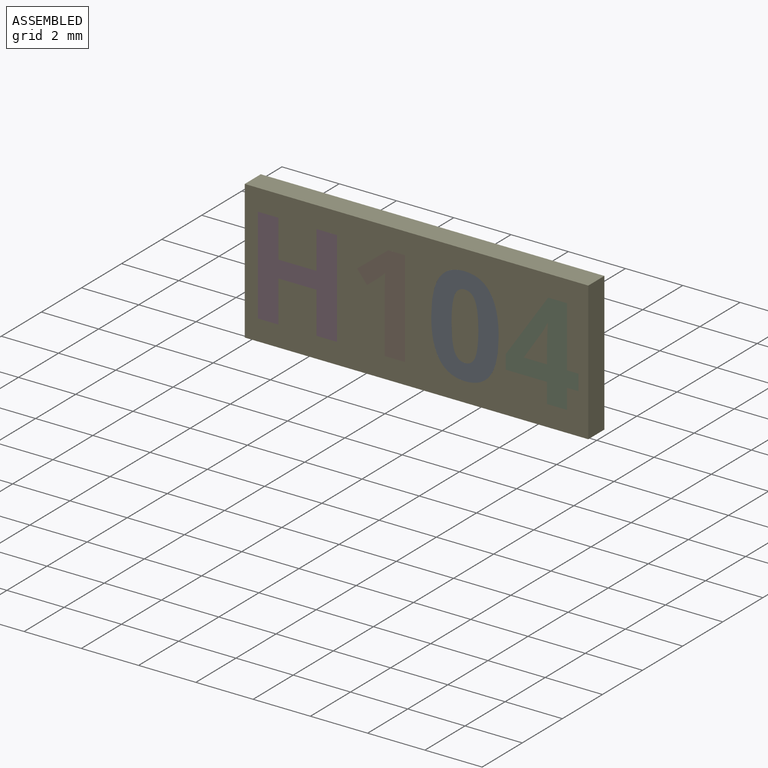
[diagram: assembled view]
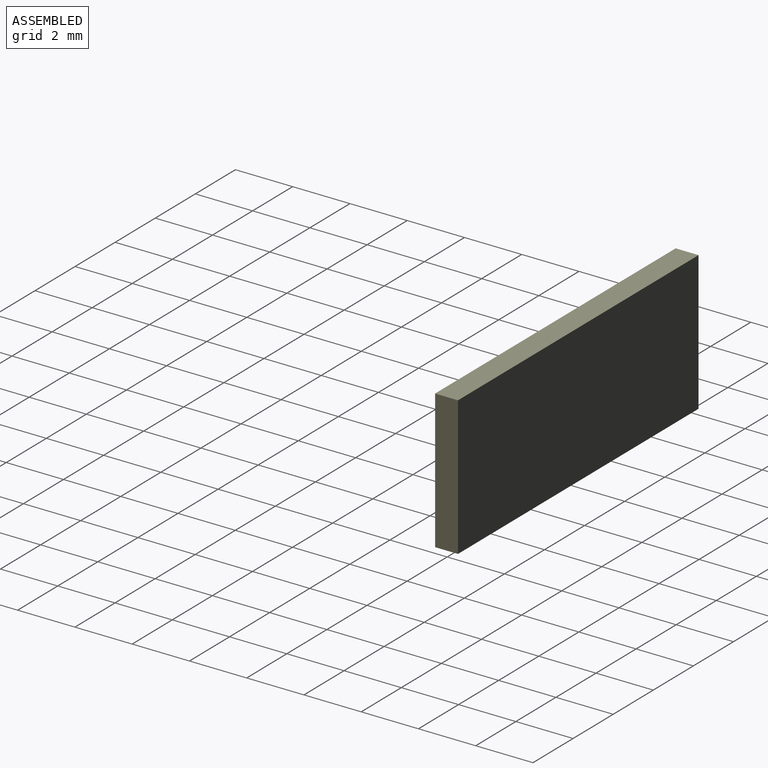
[diagram: assembled view, second angle]
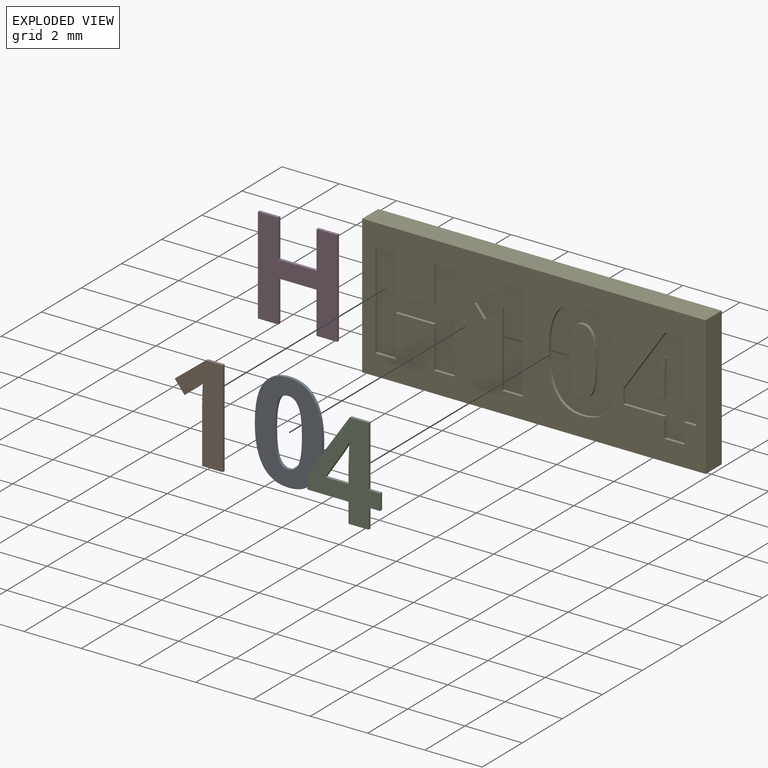
[diagram: exploded view]
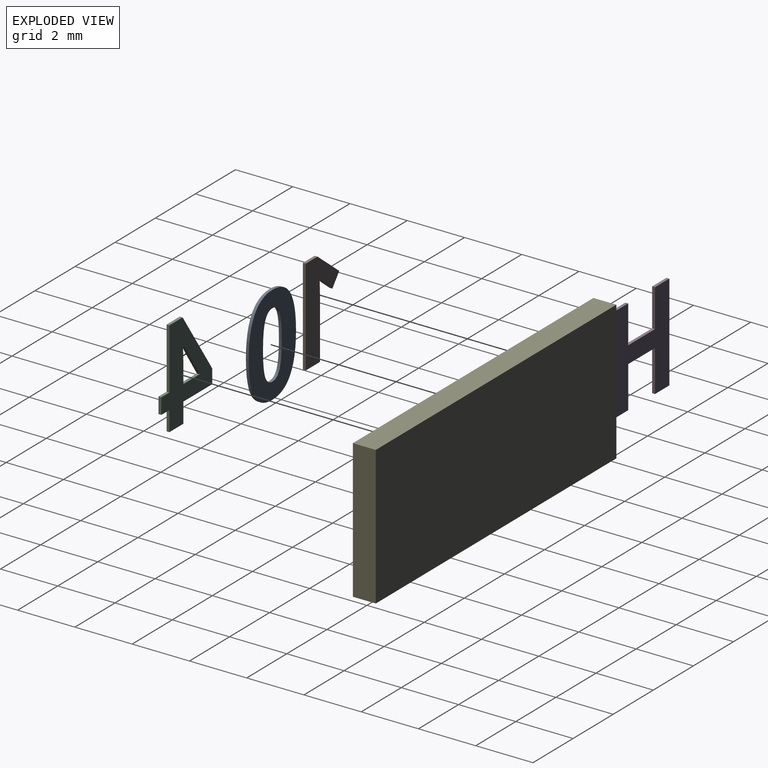
[diagram: exploded view, second angle]
ASSEMBLY  parts=5 mates=4
PART A: 18 faces, bbox 2.4x0.1x3.5 mm
  f0: plane 3.47x2.36mm, normal (0,-1,0), area 5mm2, adj f1,f2,f3,f4,f5,f6,f7,f8
  f1: extruded ~0.88x0.44mm, area 0.1mm2, adj f0,f2,f11,f13
  f2: extruded ~0.89x0.42mm, area 0.1mm2, adj f0,f1,f3,f11
  f3: extruded ~1.32x0.29mm, area 0.1mm2, adj f0,f2,f4,f11
  f4: extruded ~1.29x0.3mm, area 0.1mm2, adj f0,f3,f5,f11
  f5: extruded ~0.88x0.44mm, area 0.1mm2, adj f0,f4,f11,f12
  f6: extruded ~0.36x0.27mm, area 0mm2, adj f0,f7,f11,f16
  f7: extruded ~0.36x0.27mm, area 0mm2, adj f0,f6,f8,f11
  f8: extruded ~0.89x0.11mm, area 0.1mm2, adj f0,f7,f9,f11
  f9: extruded ~0.89x0.11mm, area 0.1mm2, adj f0,f8,f10,f11
  f10: extruded ~0.36x0.27mm, area 0mm2, adj f0,f9,f11,f15
  f11: plane 3.47x2.36mm, normal (0,1,0), area 5mm2, adj f1,f2,f3,f4,f5,f6,f7,f8
  f12: extruded ~0.89x0.42mm, area 0.1mm2, adj f0,f5,f11,f14
  f13: extruded ~1.3x0.3mm, area 0.1mm2, adj f0,f1,f11,f14
  f14: extruded ~1.31x0.29mm, area 0.1mm2, adj f0,f11,f12,f13
  f15: extruded ~0.36x0.27mm, area 0mm2, adj f0,f10,f11,f17
  f16: extruded ~0.89x0.11mm, area 0.1mm2, adj f0,f6,f11,f17
  f17: extruded ~0.89x0.11mm, area 0.1mm2, adj f0,f11,f15,f16
PART B: 12 faces, bbox 1.7x0.1x3.4 mm
  f0: plane 3.37x1.67mm, normal (0,-1,0), area 2.9mm2, adj f1,f2,f3,f4,f5,f6,f7,f9
  f1: plane 0.59x0.1mm, normal (0,0,1), area 0.1mm2, adj f0,f2,f8,f10
  f2: plane 1.09x0.86mm, normal (-0.62,0,0.78), area 0.1mm2, adj f0,f1,f3,f8
  f3: plane 0.43x0.34mm, normal (-0.78,0,-0.63), area 0.1mm2, adj f0,f2,f4,f8
  f4: plane 0.39x0.31mm, normal (0.63,0,-0.78), area 0mm2, adj f0,f3,f5,f8
  f5: extruded ~0.25x0.23mm, area 0mm2, adj f0,f4,f6,f8
  f6: plane 0.35x0.1mm, normal (-1,0,0.03), area 0mm2, adj f0,f5,f7,f8
  f7: plane 0.32x0.1mm, normal (-1,0,0.02), area 0mm2, adj f0,f6,f8,f9
  f8: plane 3.37x1.67mm, normal (0,1,0), area 2.9mm2, adj f1,f2,f3,f4,f5,f6,f7,f9
  f9: plane 1.95x0.1mm, normal (-1,0,0), area 0.2mm2, adj f0,f7,f8,f11
  f10: plane 3.37x0.1mm, normal (1,0,0), area 0.3mm2, adj f0,f1,f8,f11
  f11: plane 0.71x0.1mm, normal (0,0,-1), area 0.1mm2, adj f0,f8,f9,f10
PART C: 20 faces, bbox 2.5x0.1x3.4 mm
  f0: plane 3.37x2.54mm, normal (0,-1,0), area 4.3mm2, adj f1,f2,f3,f4,f5,f6,f7,f8
  f1: plane 0.41x0.1mm, normal (0,0,1), area 0mm2, adj f0,f2,f13,f15
  f2: plane 2.12x0.1mm, normal (1,0,0), area 0.2mm2, adj f0,f1,f3,f13
  f3: plane 0.66x0.1mm, normal (0,0,1), area 0.1mm2, adj f0,f2,f4,f13
  f4: plane 2.18x1.48mm, normal (-0.83,0,0.56), area 0.3mm2, adj f0,f3,f5,f13
  f5: plane 0.5x0.1mm, normal (-1,0,0), area 0mm2, adj f0,f4,f6,f13
  f6: plane 1.44x0.1mm, normal (0,0,-1), area 0.1mm2, adj f0,f5,f7,f13
  f7: plane 0.7x0.1mm, normal (-1,0,0), area 0.1mm2, adj f0,f6,f8,f13
  f8: plane 0.7x0.1mm, normal (0,0,-1), area 0.1mm2, adj f0,f7,f13,f14
  f9: plane 0.93x0.62mm, normal (0.83,0,-0.55), area 0.1mm2, adj f0,f10,f13,f18
  f10: extruded ~0.37x0.21mm, area 0mm2, adj f0,f9,f11,f13
  f11: plane 0.1x0.02mm, normal (0,0,-1), area 0mm2, adj f0,f10,f12,f13
  f12: extruded ~0.32x0.1mm, area 0mm2, adj f0,f11,f13,f17
  f13: plane 3.37x2.54mm, normal (0,1,0), area 4.3mm2, adj f1,f2,f3,f4,f5,f6,f7,f8
  f14: plane 0.7x0.1mm, normal (1,0,0), area 0.1mm2, adj f0,f8,f13,f16
  f15: plane 0.55x0.1mm, normal (1,0,0), area 0.1mm2, adj f0,f1,f13,f16
  f16: plane 0.41x0.1mm, normal (0,0,-1), area 0mm2, adj f0,f13,f14,f15
  f17: extruded ~0.42x0.1mm, area 0mm2, adj f0,f12,f13,f19
  f18: plane 0.81x0.1mm, normal (0,0,1), area 0.1mm2, adj f0,f9,f13,f19
  f19: plane 0.57x0.1mm, normal (-1,0,0), area 0.1mm2, adj f0,f13,f17,f18
PART D: 14 faces, bbox 2.8x0.1x3.4 mm
  f0: plane 3.37x2.76mm, normal (0,-1,0), area 5.6mm2, adj f1,f2,f3,f4,f5,f6,f7,f8
  f1: plane 0.71x0.1mm, normal (0,0,1), area 0.1mm2, adj f0,f2,f10,f12
  f2: plane 1.32x0.1mm, normal (-1,0,0), area 0.1mm2, adj f0,f1,f3,f10
  f3: plane 1.33x0.1mm, normal (0,0,1), area 0.1mm2, adj f0,f2,f4,f10
  f4: plane 1.32x0.1mm, normal (1,0,0), area 0.1mm2, adj f0,f3,f5,f10
  f5: plane 0.72x0.1mm, normal (0,0,1), area 0.1mm2, adj f0,f4,f6,f10
  f6: plane 3.37x0.1mm, normal (-1,0,0), area 0.3mm2, adj f0,f5,f7,f10
  f7: plane 0.72x0.1mm, normal (0,0,-1), area 0.1mm2, adj f0,f6,f8,f10
  f8: plane 1.46x0.1mm, normal (1,0,0), area 0.1mm2, adj f0,f7,f9,f10
  f9: plane 1.33x0.1mm, normal (0,0,-1), area 0.1mm2, adj f0,f8,f10,f11
  f10: plane 3.37x2.76mm, normal (0,1,0), area 5.6mm2, adj f1,f2,f3,f4,f5,f6,f7,f8
  f11: plane 1.46x0.1mm, normal (-1,0,0), area 0.1mm2, adj f0,f9,f10,f13
  f12: plane 3.37x0.1mm, normal (1,0,0), area 0.3mm2, adj f0,f1,f10,f13
  f13: plane 0.71x0.1mm, normal (0,0,-1), area 0.1mm2, adj f0,f10,f11,f12
PART E: 68 faces, bbox 12x0.8x4.9 mm
  f0: plane 12x4.85mm, normal (0,-1,0), area 38mm2, adj f1,f2,f3,f4,f6,f7,f8,f9
  f1: plane 4.85x0.8mm, normal (1,0,0), area 3.9mm2, adj f0,f2,f4,f5
  f2: plane 12x0.8mm, normal (0,0,1), area 9.6mm2, adj f0,f1,f3,f5
  f3: plane 4.85x0.8mm, normal (-1,0,0), area 3.9mm2, adj f0,f2,f4,f5
  f4: plane 12x0.8mm, normal (0,0,-1), area 9.6mm2, adj f0,f1,f3,f5
  f5: plane 12x4.85mm, normal (0,1,0), area 58.2mm2, adj f1,f2,f3,f4
  f6: plane 0.55x0.1mm, normal (-1,0,0), area 0.1mm2, adj f0,f7,f23,f24
  f7: plane 0.41x0.1mm, normal (0,0,-1), area 0mm2, adj f0,f6,f8,f24
  f8: plane 2.12x0.1mm, normal (-1,0,0), area 0.2mm2, adj f0,f7,f9,f24
  f9: plane 0.66x0.1mm, normal (0,0,-1), area 0.1mm2, adj f0,f8,f10,f24
  f10: plane 2.18x1.48mm, normal (0.83,0,-0.56), area 0.3mm2, adj f0,f9,f11,f24
  f11: plane 0.5x0.1mm, normal (1,0,0), area 0mm2, adj f0,f10,f12,f24
  f12: plane 1.44x0.1mm, normal (0,0,1), area 0.1mm2, adj f0,f11,f13,f24
  f13: plane 0.7x0.1mm, normal (1,0,0), area 0.1mm2, adj f0,f12,f14,f24
  f14: plane 0.7x0.1mm, normal (0,0,1), area 0.1mm2, adj f0,f13,f15,f24
  f15: plane 0.7x0.1mm, normal (-1,0,0), area 0.1mm2, adj f0,f14,f23,f24
  f16: plane 0.81x0.1mm, normal (0,0,-1), area 0.1mm2, adj f17,f22,f24,f25
  f17: plane 0.93x0.62mm, normal (-0.83,0,0.55), area 0.1mm2, adj f16,f18,f24,f25
  f18: extruded ~0.37x0.21mm, area 0mm2, adj f17,f19,f24,f25
  f19: plane 0.1x0.02mm, normal (0,0,1), area 0mm2, adj f18,f20,f24,f25
  f20: extruded ~0.32x0.1mm, area 0mm2, adj f19,f21,f24,f25
  f21: extruded ~0.42x0.1mm, area 0mm2, adj f20,f22,f24,f25
  f22: plane 0.57x0.1mm, normal (1,0,0), area 0.1mm2, adj f16,f21,f24,f25
  f23: plane 0.41x0.1mm, normal (0,0,1), area 0mm2, adj f0,f6,f15,f24
  f24: plane 3.37x2.54mm, normal (0,-1,0), area 4.3mm2, adj f6,f7,f8,f9,f10,f11,f12,f13
  f25: plane 1.3x0.84mm, normal (0,-1,0), area 0.5mm2, adj f16,f17,f18,f19,f20,f21,f22
  f26: extruded ~1.3x0.3mm, area 0.1mm2, adj f0,f27,f41,f42
  f27: extruded ~0.88x0.44mm, area 0.1mm2, adj f0,f26,f28,f42
  f28: extruded ~0.89x0.42mm, area 0.1mm2, adj f0,f27,f29,f42
  f29: extruded ~1.32x0.29mm, area 0.1mm2, adj f0,f28,f30,f42
  f30: extruded ~1.29x0.3mm, area 0.1mm2, adj f0,f29,f31,f42
  f31: extruded ~0.88x0.44mm, area 0.1mm2, adj f0,f30,f32,f42
  f32: extruded ~0.89x0.42mm, area 0.1mm2, adj f0,f31,f41,f42
  f33: extruded ~0.89x0.11mm, area 0.1mm2, adj f34,f40,f42,f43
  f34: extruded ~0.36x0.27mm, area 0mm2, adj f33,f35,f42,f43
  f35: extruded ~0.36x0.27mm, area 0mm2, adj f34,f36,f42,f43
  f36: extruded ~0.89x0.11mm, area 0.1mm2, adj f35,f37,f42,f43
  f37: extruded ~0.89x0.11mm, area 0.1mm2, adj f36,f38,f42,f43
  f38: extruded ~0.36x0.27mm, area 0mm2, adj f37,f39,f42,f43
  f39: extruded ~0.36x0.27mm, area 0mm2, adj f38,f40,f42,f43
  f40: extruded ~0.89x0.11mm, area 0.1mm2, adj f33,f39,f42,f43
  f41: extruded ~1.31x0.29mm, area 0.1mm2, adj f0,f26,f32,f42
  f42: plane 3.47x2.36mm, normal (0,-1,0), area 5mm2, adj f26,f27,f28,f29,f30,f31,f32,f33
  f43: plane 2.32x0.94mm, normal (0,-1,0), area 1.8mm2, adj f33,f34,f35,f36,f37,f38,f39,f40
  f44: plane 3.37x0.1mm, normal (-1,0,0), area 0.3mm2, adj f0,f45,f53,f54
  f45: plane 0.59x0.1mm, normal (0,0,-1), area 0.1mm2, adj f0,f44,f46,f54
  f46: plane 1.09x0.86mm, normal (0.62,0,-0.78), area 0.1mm2, adj f0,f45,f47,f54
  f47: plane 0.43x0.34mm, normal (0.78,0,0.63), area 0.1mm2, adj f0,f46,f48,f54
  f48: plane 0.39x0.31mm, normal (-0.63,0,0.78), area 0mm2, adj f0,f47,f49,f54
  f49: extruded ~0.25x0.23mm, area 0mm2, adj f0,f48,f50,f54
  f50: plane 0.35x0.1mm, normal (1,0,-0.03), area 0mm2, adj f0,f49,f51,f54
  f51: plane 0.32x0.1mm, normal (1,0,-0.02), area 0mm2, adj f0,f50,f52,f54
  f52: plane 1.95x0.1mm, normal (1,0,0), area 0.2mm2, adj f0,f51,f53,f54
  f53: plane 0.71x0.1mm, normal (0,0,1), area 0.1mm2, adj f0,f44,f52,f54
  f54: plane 3.37x1.67mm, normal (0,-1,0), area 2.9mm2, adj f44,f45,f46,f47,f48,f49,f50,f51
  f55: plane 3.37x0.1mm, normal (-1,0,0), area 0.3mm2, adj f0,f56,f66,f67
  f56: plane 0.71x0.1mm, normal (0,0,-1), area 0.1mm2, adj f0,f55,f57,f67
  f57: plane 1.32x0.1mm, normal (1,0,0), area 0.1mm2, adj f0,f56,f58,f67
  f58: plane 1.33x0.1mm, normal (0,0,-1), area 0.1mm2, adj f0,f57,f59,f67
  f59: plane 1.32x0.1mm, normal (-1,0,0), area 0.1mm2, adj f0,f58,f60,f67
  f60: plane 0.72x0.1mm, normal (0,0,-1), area 0.1mm2, adj f0,f59,f61,f67
  f61: plane 3.37x0.1mm, normal (1,0,0), area 0.3mm2, adj f0,f60,f62,f67
  f62: plane 0.72x0.1mm, normal (0,0,1), area 0.1mm2, adj f0,f61,f63,f67
  f63: plane 1.46x0.1mm, normal (-1,0,0), area 0.1mm2, adj f0,f62,f64,f67
  f64: plane 1.33x0.1mm, normal (0,0,1), area 0.1mm2, adj f0,f63,f65,f67
  f65: plane 1.46x0.1mm, normal (1,0,0), area 0.1mm2, adj f0,f64,f66,f67
  f66: plane 0.71x0.1mm, normal (0,0,1), area 0.1mm2, adj f0,f55,f65,f67
  f67: plane 3.37x2.76mm, normal (0,-1,0), area 5.6mm2, adj f55,f56,f57,f58,f59,f60,f61,f62
PLACE A t=(-1.16,0.38,-0.03)mm
PLACE B t=(-2.79,0.38,-0.03)mm
PLACE C t=(2.93,0.38,-0.03)mm
PLACE D t=(-0.06,0.38,-0.03)mm
PLACE E t=(0,0.38,-0.03)mm
MATE fastened C.f0 <-> E.f0  axis (0,-1,0) through (4.56,-0.42,-1.73)mm
MATE fastened D.f0 <-> E.f0  axis (0,-1,0) through (-5.54,-0.42,-1.73)mm
MATE fastened B.f0 <-> E.f0  axis (0,-1,0) through (-1.12,-0.42,-1.73)mm
MATE fastened A.f0 <-> E.f43  axis (0,-1,0) through (1.69,-0.42,-1.2)mm
